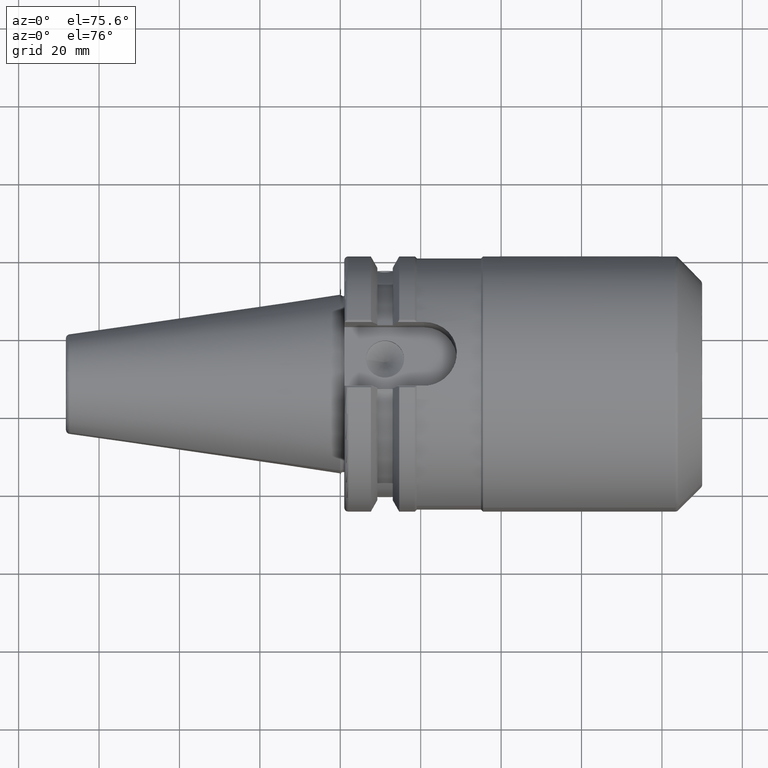
[diagram: clean part render]
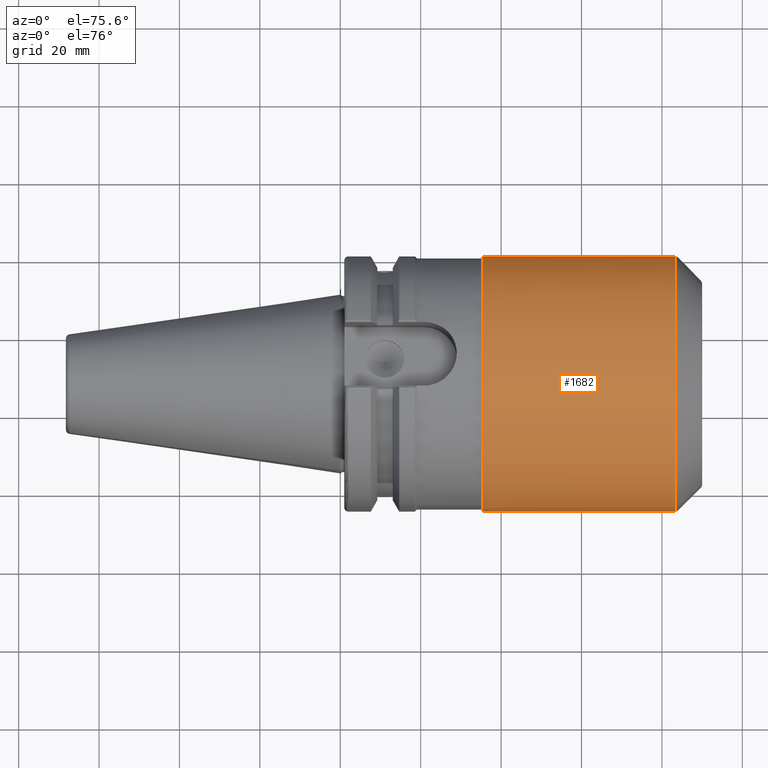
[diagram: same view with one face highlighted and labeled with its STEP entity id]
A machine part, auxiliary view. The second image highlights one B-rep face of the part: STEP entity #1682.
In plain terms, the highlighted cylindrical surface (bore or boss wall) has radius 31.75 mm, axis along (1, 0, 0).
Its self-contained STEP definition (entity closure, byte-faithful):
#86=B_SPLINE_CURVE_WITH_KNOTS('',3,(#2542,#2543,#2544,#2545,#2546,#2547,
#2548,#2549,#2550,#2551,#2552,#2553,#2554,#2555,#2556,#2557,#2558,#2559,
#2560,#2561,#2562,#2563,#2564,#2565,#2566,#2567),.UNSPECIFIED.,.F.,.F.,
(4,2,2,2,2,2,2,2,2,2,2,2,4),(0.,0.33621364388637,0.67242728777274,1.0192489826825,
1.36607067759227,1.71289237250203,2.0597140674118,2.39592771129817,2.73214135518454,
3.06835499907091,3.40456864295728,3.75139033786704,4.0982120327768),
 .UNSPECIFIED.);
#87=B_SPLINE_CURVE_WITH_KNOTS('',3,(#2568,#2569,#2570,#2571,#2572,#2573,
#2574,#2575,#2576,#2577),.UNSPECIFIED.,.F.,.F.,(4,2,2,2,4),(4.0982120327768,
4.44503372768657,4.79185542259633,5.1280690664827,5.46428271036907),
 .UNSPECIFIED.);
#90=B_SPLINE_CURVE_WITH_KNOTS('',3,(#2627,#2628,#2629,#2630,#2631,#2632,
#2633,#2634,#2635,#2636,#2637,#2638,#2639,#2640,#2641,#2642,#2643,#2644,
#2645,#2646,#2647,#2648,#2649,#2650,#2651,#2652),.UNSPECIFIED.,.F.,.F.,
(4,2,2,2,2,2,2,2,2,2,2,2,4),(0.,0.33621364388637,0.67242728777274,1.0192489826825,
1.36607067759227,1.71289237250203,2.0597140674118,2.39592771129817,2.73214135518454,
3.06835499907091,3.40456864295728,3.75139033786704,4.0982120327768),
 .UNSPECIFIED.);
#91=B_SPLINE_CURVE_WITH_KNOTS('',3,(#2653,#2654,#2655,#2656,#2657,#2658,
#2659,#2660,#2661,#2662),.UNSPECIFIED.,.F.,.F.,(4,2,2,2,4),(4.0982120327768,
4.44503372768657,4.79185542259633,5.1280690664827,5.46428271036907),
 .UNSPECIFIED.);
#147=LINE('',#2799,#239);
#239=VECTOR('',#2073,31.75);
#308=CYLINDRICAL_SURFACE('',#1812,31.75);
#341=FACE_BOUND('',#469,.T.);
#342=FACE_BOUND('',#470,.T.);
#372=FACE_OUTER_BOUND('',#468,.T.);
#468=EDGE_LOOP('',(#1178,#1179,#1180,#1181,#1182,#1183));
#469=EDGE_LOOP('',(#1184,#1185));
#470=EDGE_LOOP('',(#1186,#1187));
#576=CIRCLE('',#1808,31.75);
#577=CIRCLE('',#1809,31.75);
#580=CIRCLE('',#1813,31.75);
#581=CIRCLE('',#1814,31.75);
#663=VERTEX_POINT('',#2539);
#664=VERTEX_POINT('',#2541);
#669=VERTEX_POINT('',#2624);
#670=VERTEX_POINT('',#2626);
#708=VERTEX_POINT('',#2786);
#709=VERTEX_POINT('',#2787);
#712=VERTEX_POINT('',#2796);
#713=VERTEX_POINT('',#2797);
#841=EDGE_CURVE('',#664,#663,#86,.T.);
#842=EDGE_CURVE('',#663,#664,#87,.T.);
#849=EDGE_CURVE('',#670,#669,#90,.T.);
#850=EDGE_CURVE('',#669,#670,#91,.T.);
#892=EDGE_CURVE('',#708,#709,#576,.T.);
#893=EDGE_CURVE('',#709,#708,#577,.T.);
#897=EDGE_CURVE('',#712,#713,#580,.T.);
#898=EDGE_CURVE('',#712,#709,#147,.T.);
#899=EDGE_CURVE('',#713,#712,#581,.T.);
#1178=ORIENTED_EDGE('',*,*,#897,.F.);
#1179=ORIENTED_EDGE('',*,*,#898,.T.);
#1180=ORIENTED_EDGE('',*,*,#892,.F.);
#1181=ORIENTED_EDGE('',*,*,#893,.F.);
#1182=ORIENTED_EDGE('',*,*,#898,.F.);
#1183=ORIENTED_EDGE('',*,*,#899,.F.);
#1184=ORIENTED_EDGE('',*,*,#841,.T.);
#1185=ORIENTED_EDGE('',*,*,#842,.T.);
#1186=ORIENTED_EDGE('',*,*,#849,.T.);
#1187=ORIENTED_EDGE('',*,*,#850,.T.);
#1682=ADVANCED_FACE('',(#372,#341,#342),#308,.T.);
#1808=AXIS2_PLACEMENT_3D('',#2788,#2060,#2061);
#1809=AXIS2_PLACEMENT_3D('',#2789,#2062,#2063);
#1812=AXIS2_PLACEMENT_3D('',#2795,#2069,#2070);
#1813=AXIS2_PLACEMENT_3D('',#2798,#2071,#2072);
#1814=AXIS2_PLACEMENT_3D('',#2800,#2074,#2075);
#2060=DIRECTION('center_axis',(-1.,0.,0.));
#2061=DIRECTION('ref_axis',(0.,-1.,0.));
#2062=DIRECTION('center_axis',(-1.,0.,0.));
#2063=DIRECTION('ref_axis',(0.,-1.,0.));
#2069=DIRECTION('center_axis',(1.,0.,0.));
#2070=DIRECTION('ref_axis',(0.,1.,0.));
#2071=DIRECTION('center_axis',(1.,0.,0.));
#2072=DIRECTION('ref_axis',(0.,-1.,1.83697019872103E-16));
#2073=DIRECTION('',(-1.,0.,0.));
#2074=DIRECTION('center_axis',(1.,0.,0.));
#2075=DIRECTION('ref_axis',(0.,-1.,1.83697019872103E-16));
#2539=CARTESIAN_POINT('',(36.4525,31.75,1.17413011868252E-15));
#2541=CARTESIAN_POINT('',(46.04,30.6065450922003,-8.44404509220027));
#2542=CARTESIAN_POINT('Ctrl Pts',(46.04,30.6065450922003,-8.44404509220027));
#2543=CARTESIAN_POINT('Ctrl Pts',(47.1607121462879,30.6065450922003,-8.44404509220027));
#2544=CARTESIAN_POINT('Ctrl Pts',(48.3661639688805,30.6596470398634,-8.25886961767081));
#2545=CARTESIAN_POINT('Ctrl Pts',(50.6269480919736,30.8582103201336,-7.48289730460608));
#2546=CARTESIAN_POINT('Ctrl Pts',(51.6825116006537,31.0011997269014,-6.89214353398695));
#2547=CARTESIAN_POINT('Ctrl Pts',(53.4330309653433,31.2849956239557,-5.46424671276928));
#2548=CARTESIAN_POINT('Ctrl Pts',(54.2405920544839,31.4460485930412,-4.51459552581978));
#2549=CARTESIAN_POINT('Ctrl Pts',(55.3387122780822,31.6805993879909,-2.36118186142058));
#2550=CARTESIAN_POINT('Ctrl Pts',(55.6275,31.75,-1.15607231636588));
#2551=CARTESIAN_POINT('Ctrl Pts',(55.6275,31.75,1.15607231636588));
#2552=CARTESIAN_POINT('Ctrl Pts',(55.3387122780822,31.6805993879909,2.36118186142058));
#2553=CARTESIAN_POINT('Ctrl Pts',(54.2405920544839,31.4460485930412,4.51459552581978));
#2554=CARTESIAN_POINT('Ctrl Pts',(53.4330309653433,31.2849956239557,5.46424671276928));
#2555=CARTESIAN_POINT('Ctrl Pts',(51.6825116006537,31.0011997269014,6.89214353398695));
#2556=CARTESIAN_POINT('Ctrl Pts',(50.6269480919736,30.8582103201336,7.48289730460608));
#2557=CARTESIAN_POINT('Ctrl Pts',(48.3661639688805,30.6596470398634,8.25886961767081));
#2558=CARTESIAN_POINT('Ctrl Pts',(47.1607121462879,30.6065450922003,8.44404509220027));
#2559=CARTESIAN_POINT('Ctrl Pts',(44.9192878537121,30.6065450922003,8.44404509220027));
#2560=CARTESIAN_POINT('Ctrl Pts',(43.7138360311195,30.6596470398634,8.25886961767081));
#2561=CARTESIAN_POINT('Ctrl Pts',(41.4530519080263,30.8582103201336,7.48289730460608));
#2562=CARTESIAN_POINT('Ctrl Pts',(40.3974883993462,31.0011997269014,6.89214353398695));
#2563=CARTESIAN_POINT('Ctrl Pts',(38.6469690346566,31.2849956239557,5.46424671276928));
#2564=CARTESIAN_POINT('Ctrl Pts',(37.8394079455161,31.4460485930412,4.51459552581978));
#2565=CARTESIAN_POINT('Ctrl Pts',(36.7412877219178,31.6805993879909,2.36118186142058));
#2566=CARTESIAN_POINT('Ctrl Pts',(36.4525,31.75,1.15607231636588));
#2567=CARTESIAN_POINT('Ctrl Pts',(36.4525,31.75,1.11022302462516E-15));
#2568=CARTESIAN_POINT('Ctrl Pts',(36.4525,31.75,1.38777878078145E-15));
#2569=CARTESIAN_POINT('Ctrl Pts',(36.4525,31.75,-1.15607231636588));
#2570=CARTESIAN_POINT('Ctrl Pts',(36.7412877219178,31.6805993879909,-2.36118186142058));
#2571=CARTESIAN_POINT('Ctrl Pts',(37.839407945516,31.4460485930412,-4.51459552581978));
#2572=CARTESIAN_POINT('Ctrl Pts',(38.6469690346566,31.2849956239557,-5.46424671276928));
#2573=CARTESIAN_POINT('Ctrl Pts',(40.3974883993462,31.0011997269014,-6.89214353398695));
#2574=CARTESIAN_POINT('Ctrl Pts',(41.4530519080263,30.8582103201336,-7.48289730460608));
#2575=CARTESIAN_POINT('Ctrl Pts',(43.7138360311195,30.6596470398634,-8.25886961767081));
#2576=CARTESIAN_POINT('Ctrl Pts',(44.9192878537121,30.6065450922003,-8.44404509220027));
#2577=CARTESIAN_POINT('Ctrl Pts',(46.04,30.6065450922003,-8.44404509220027));
#2624=CARTESIAN_POINT('',(59.3125,31.75,1.17413011868252E-15));
#2626=CARTESIAN_POINT('',(68.9,30.6065450922003,-8.44404509220027));
#2627=CARTESIAN_POINT('Ctrl Pts',(68.9,30.6065450922003,-8.44404509220027));
#2628=CARTESIAN_POINT('Ctrl Pts',(70.0207121462879,30.6065450922003,-8.44404509220027));
#2629=CARTESIAN_POINT('Ctrl Pts',(71.2261639688805,30.6596470398634,-8.25886961767081));
#2630=CARTESIAN_POINT('Ctrl Pts',(73.4869480919737,30.8582103201336,-7.48289730460608));
#2631=CARTESIAN_POINT('Ctrl Pts',(74.5425116006537,31.0011997269014,-6.89214353398695));
#2632=CARTESIAN_POINT('Ctrl Pts',(76.2930309653433,31.2849956239557,-5.46424671276928));
#2633=CARTESIAN_POINT('Ctrl Pts',(77.1005920544839,31.4460485930412,-4.51459552581978));
#2634=CARTESIAN_POINT('Ctrl Pts',(78.1987122780822,31.6805993879909,-2.36118186142058));
#2635=CARTESIAN_POINT('Ctrl Pts',(78.4875,31.75,-1.15607231636588));
#2636=CARTESIAN_POINT('Ctrl Pts',(78.4875,31.75,1.15607231636588));
#2637=CARTESIAN_POINT('Ctrl Pts',(78.1987122780822,31.6805993879909,2.36118186142058));
#2638=CARTESIAN_POINT('Ctrl Pts',(77.1005920544839,31.4460485930412,4.51459552581978));
#2639=CARTESIAN_POINT('Ctrl Pts',(76.2930309653433,31.2849956239557,5.46424671276928));
#2640=CARTESIAN_POINT('Ctrl Pts',(74.5425116006537,31.0011997269014,6.89214353398695));
#2641=CARTESIAN_POINT('Ctrl Pts',(73.4869480919736,30.8582103201336,7.48289730460609));
#2642=CARTESIAN_POINT('Ctrl Pts',(71.2261639688805,30.6596470398634,8.25886961767081));
#2643=CARTESIAN_POINT('Ctrl Pts',(70.0207121462879,30.6065450922003,8.44404509220027));
#2644=CARTESIAN_POINT('Ctrl Pts',(67.7792878537121,30.6065450922003,8.44404509220027));
#2645=CARTESIAN_POINT('Ctrl Pts',(66.5738360311195,30.6596470398634,8.25886961767081));
#2646=CARTESIAN_POINT('Ctrl Pts',(64.3130519080264,30.8582103201336,7.48289730460608));
#2647=CARTESIAN_POINT('Ctrl Pts',(63.2574883993463,31.0011997269014,6.89214353398695));
#2648=CARTESIAN_POINT('Ctrl Pts',(61.5069690346567,31.2849956239557,5.46424671276928));
#2649=CARTESIAN_POINT('Ctrl Pts',(60.6994079455161,31.4460485930412,4.51459552581979));
#2650=CARTESIAN_POINT('Ctrl Pts',(59.6012877219178,31.6805993879909,2.36118186142058));
#2651=CARTESIAN_POINT('Ctrl Pts',(59.3125,31.75,1.15607231636588));
#2652=CARTESIAN_POINT('Ctrl Pts',(59.3125,31.75,2.77555756156289E-15));
#2653=CARTESIAN_POINT('Ctrl Pts',(59.3125,31.75,2.4980018054066E-15));
#2654=CARTESIAN_POINT('Ctrl Pts',(59.3125,31.75,-1.15607231636588));
#2655=CARTESIAN_POINT('Ctrl Pts',(59.6012877219178,31.6805993879909,-2.36118186142058));
#2656=CARTESIAN_POINT('Ctrl Pts',(60.6994079455161,31.4460485930412,-4.51459552581978));
#2657=CARTESIAN_POINT('Ctrl Pts',(61.5069690346566,31.2849956239557,-5.46424671276928));
#2658=CARTESIAN_POINT('Ctrl Pts',(63.2574883993463,31.0011997269014,-6.89214353398695));
#2659=CARTESIAN_POINT('Ctrl Pts',(64.3130519080264,30.8582103201336,-7.48289730460608));
#2660=CARTESIAN_POINT('Ctrl Pts',(66.5738360311195,30.6596470398634,-8.25886961767081));
#2661=CARTESIAN_POINT('Ctrl Pts',(67.7792878537121,30.6065450922003,-8.44404509220027));
#2662=CARTESIAN_POINT('Ctrl Pts',(68.9,30.6065450922003,-8.44404509220027));
#2786=CARTESIAN_POINT('',(35.5,31.75,-3.88825358729285E-15));
#2787=CARTESIAN_POINT('',(35.5,-31.75,-3.88825358729285E-15));
#2788=CARTESIAN_POINT('Origin',(35.5,0.,0.));
#2789=CARTESIAN_POINT('Origin',(35.5,0.,0.));
#2795=CARTESIAN_POINT('Origin',(59.375,0.,0.));
#2796=CARTESIAN_POINT('',(83.3357864376269,-31.75,-3.88825358729285E-15));
#2797=CARTESIAN_POINT('',(83.3357864376269,-3.88825358729285E-15,31.75));
#2798=CARTESIAN_POINT('Origin',(83.3357864376269,0.,0.));
#2799=CARTESIAN_POINT('',(59.375,-31.75,-3.88825358729285E-15));
#2800=CARTESIAN_POINT('Origin',(83.3357864376269,0.,0.));